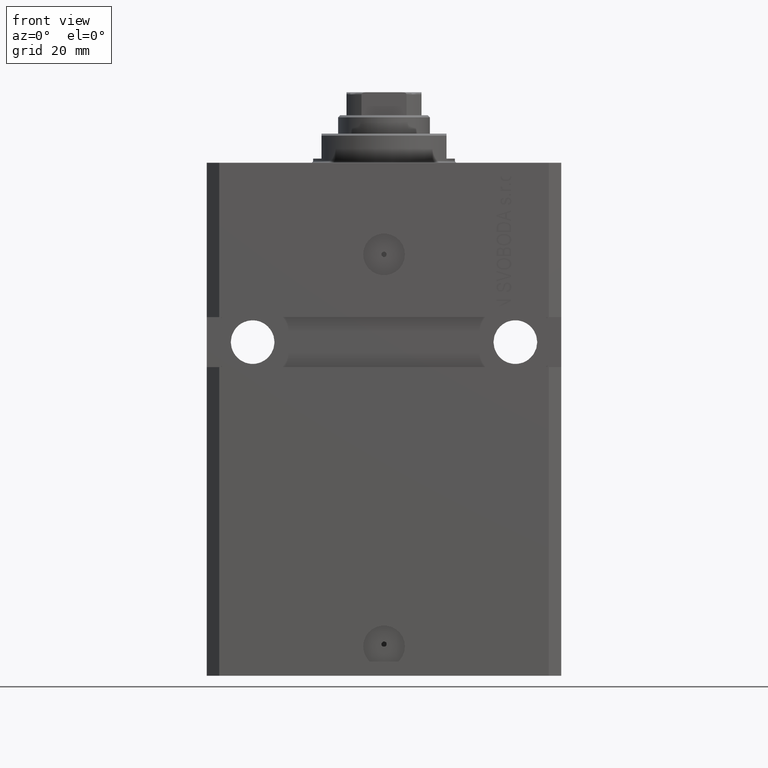
[diagram: clean part render]
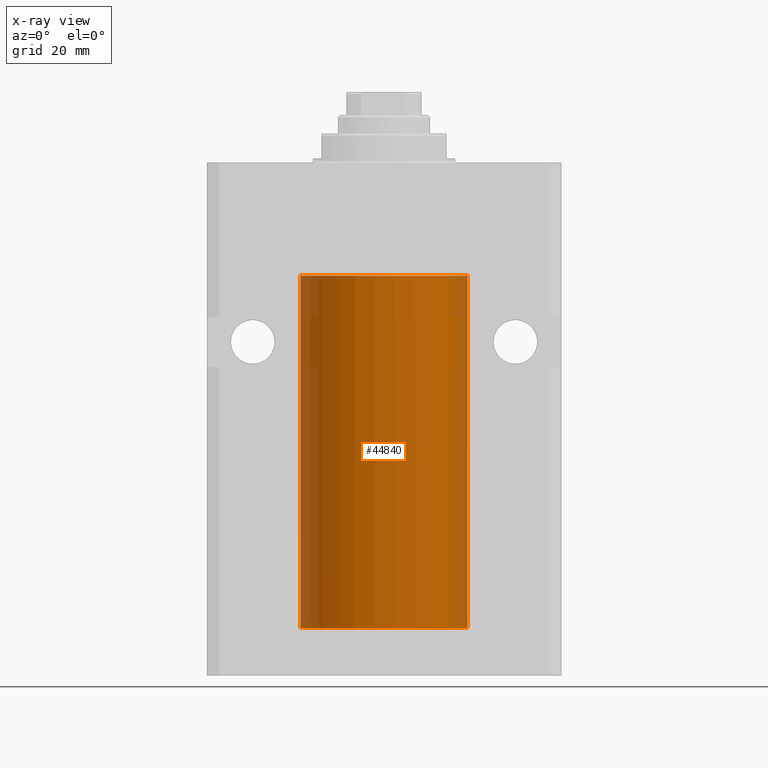
[diagram: x-ray — body ghosted, one internal face saturated and labeled with its STEP entity id]
A machine part, front view, then the same camera in x-ray: the body is ghosted and one INTERNAL B-rep face — a face not visible from any outside direction — is saturated and labeled: STEP entity #44840.
In plain terms, the highlighted cylindrical surface (partial cylindrical patch) has radius 20 mm, axis along (0, 0, 1).
Its self-contained STEP definition (entity closure, byte-faithful):
#920 = CARTESIAN_POINT ( 'NONE',  ( -20.00000000000000000, 2.449293598294706513E-15, -111.6000000000000085 ) ) ;
#1014 = EDGE_CURVE ( 'NONE', #11936, #3204, #30400, .T. ) ;
#1141 = ORIENTED_EDGE ( 'NONE', *, *, #29177, .F. ) ;
#1352 = DIRECTION ( 'NONE',  ( 0.000000000000000000, 0.000000000000000000, 1.000000000000000000 ) ) ;
#1440 = ORIENTED_EDGE ( 'NONE', *, *, #33834, .F. ) ;
#1808 = CARTESIAN_POINT ( 'NONE',  ( 0.000000000000000000, 0.000000000000000000, -111.6000000000000085 ) ) ;
#3204 = VERTEX_POINT ( 'NONE', #12331 ) ;
#4595 = CARTESIAN_POINT ( 'NONE',  ( 19.99766246719553209, -0.3267907458473873761, -109.5571608607969267 ) ) ;
#4860 = CARTESIAN_POINT ( 'NONE',  ( 20.00000000000000000, -4.058908006348821872E-15, -109.6250000000000000 ) ) ;
#5113 = ORIENTED_EDGE ( 'NONE', *, *, #19430, .T. ) ;
#5538 = CARTESIAN_POINT ( 'NONE',  ( 20.00000000000010303, 3.555666352936568165E-13, -108.3749999999966747 ) ) ;
#6139 = CARTESIAN_POINT ( 'NONE',  ( 0.000000000000000000, 0.000000000000000000, -27.10000000000000142 ) ) ;
#6239 = VERTEX_POINT ( 'NONE', #26034 ) ;
#7602 = CARTESIAN_POINT ( 'NONE',  ( -20.00000000000000000, 2.449293598294706513E-15, -27.10000000000000142 ) ) ;
#8498 = VERTEX_POINT ( 'NONE', #5538 ) ;
#9079 = B_SPLINE_CURVE_WITH_KNOTS ( 'NONE', 3,
 ( #14800, #34989, #42021, #4595, #28637, #21603 ),
 .UNSPECIFIED., .F., .F.,
 ( 4, 2, 4 ),
 ( 0.002931526102908805446, 0.003419696219975630440, 0.003907866337042455000 ),
 .UNSPECIFIED. ) ;
#10405 = CARTESIAN_POINT ( 'NONE',  ( 19.99257096259849931, -0.5571491910957669935, -108.6731986224609869 ) ) ;
#10667 = CIRCLE ( 'NONE', #27320, 20.00000000000000000 ) ;
#11505 = EDGE_CURVE ( 'NONE', #8498, #3204, #32363, .T. ) ;
#11610 = EDGE_CURVE ( 'NONE', #36295, #11936, #13271, .T. ) ;
#11936 = VERTEX_POINT ( 'NONE', #7602 ) ;
#11948 = VERTEX_POINT ( 'NONE', #4860 ) ;
#12331 = CARTESIAN_POINT ( 'NONE',  ( 20.00000000000000000, 0.000000000000000000, -27.10000000000000142 ) ) ;
#13023 = DIRECTION ( 'NONE',  ( -0.000000000000000000, -0.000000000000000000, 1.000000000000000000 ) ) ;
#13271 = LINE ( 'NONE', #26667, #18290 ) ;
#14800 = CARTESIAN_POINT ( 'NONE',  ( 19.99023198964933812, -0.6250000000000827116, -109.0000000000000000 ) ) ;
#15265 = CYLINDRICAL_SURFACE ( 'NONE', #30409, 20.00000000000000000 ) ;
#15799 = CARTESIAN_POINT ( 'NONE',  ( 20.00000000000000000, 0.000000000000000000, -111.6000000000000085 ) ) ;
#15988 = LINE ( 'NONE', #23456, #26457 ) ;
#16778 = DIRECTION ( 'NONE',  ( 0.000000000000000000, 0.000000000000000000, 1.000000000000000000 ) ) ;
#18290 = VECTOR ( 'NONE', #27112, 1000.000000000000000 ) ;
#19430 = EDGE_CURVE ( 'NONE', #23314, #11948, #9079, .T. ) ;
#20610 = CARTESIAN_POINT ( 'NONE',  ( 20.00000000000000000, -0.1632180151482451602, -108.3749999999998295 ) ) ;
#21603 = CARTESIAN_POINT ( 'NONE',  ( 20.00000000000000000, -4.058908006348821872E-15, -109.6250000000000000 ) ) ;
#21837 = FACE_OUTER_BOUND ( 'NONE', #32117, .T. ) ;
#22071 = CARTESIAN_POINT ( 'NONE',  ( 19.99023198964933812, -0.6250000000000827116, -109.0000000000000000 ) ) ;
#23314 = VERTEX_POINT ( 'NONE', #22071 ) ;
#23456 = CARTESIAN_POINT ( 'NONE',  ( 20.00000000000000000, 0.000000000000000000, -111.6000000000000085 ) ) ;
#24455 = CARTESIAN_POINT ( 'NONE',  ( 19.99023198964933812, -0.6250000000000828226, -108.8350317194948502 ) ) ;
#24681 = CARTESIAN_POINT ( 'NONE',  ( 19.99023198964933812, -0.6250000000000827116, -109.0000000000000000 ) ) ;
#24789 = DIRECTION ( 'NONE',  ( -0.000000000000000000, -0.000000000000000000, 1.000000000000000000 ) ) ;
#25037 = ORIENTED_EDGE ( 'NONE', *, *, #11610, .T. ) ;
#26034 = CARTESIAN_POINT ( 'NONE',  ( 20.00000000000000000, 0.000000000000000000, -111.6000000000000085 ) ) ;
#26255 = VECTOR ( 'NONE', #32134, 1000.000000000000000 ) ;
#26457 = VECTOR ( 'NONE', #13023, 1000.000000000000000 ) ;
#26667 = CARTESIAN_POINT ( 'NONE',  ( -20.00000000000000000, 2.449293598294706513E-15, -111.6000000000000085 ) ) ;
#27112 = DIRECTION ( 'NONE',  ( -0.000000000000000000, -0.000000000000000000, 1.000000000000000000 ) ) ;
#27320 = AXIS2_PLACEMENT_3D ( 'NONE', #1808, #1352, #43306 ) ;
#28637 = CARTESIAN_POINT ( 'NONE',  ( 20.00000000000000000, -0.1650670266421430665, -109.6250000000000284 ) ) ;
#29177 = EDGE_CURVE ( 'NONE', #6239, #11948, #15988, .T. ) ;
#30269 = ORIENTED_EDGE ( 'NONE', *, *, #11505, .F. ) ;
#30400 = CIRCLE ( 'NONE', #31106, 20.00000000000000000 ) ;
#30409 = AXIS2_PLACEMENT_3D ( 'NONE', #35674, #24789, #32277 ) ;
#31038 = CARTESIAN_POINT ( 'NONE',  ( 20.00000000000010303, 3.555666352936568165E-13, -108.3749999999966747 ) ) ;
#31106 = AXIS2_PLACEMENT_3D ( 'NONE', #6139, #16778, #34468 ) ;
#32117 = EDGE_LOOP ( 'NONE', ( #1440, #25037, #41440, #30269, #36617, #5113, #1141 ) ) ;
#32134 = DIRECTION ( 'NONE',  ( -0.000000000000000000, -0.000000000000000000, 1.000000000000000000 ) ) ;
#32277 = DIRECTION ( 'NONE',  ( 1.000000000000000000, 0.000000000000000000, 0.000000000000000000 ) ) ;
#32363 = LINE ( 'NONE', #15799, #26255 ) ;
#33834 = EDGE_CURVE ( 'NONE', #36295, #6239, #10667, .T. ) ;
#34468 = DIRECTION ( 'NONE',  ( 1.000000000000000000, 0.000000000000000000, 0.000000000000000000 ) ) ;
#34989 = CARTESIAN_POINT ( 'NONE',  ( 19.99023198964934167, -0.6250000000000828226, -109.1647941998272842 ) ) ;
#35674 = CARTESIAN_POINT ( 'NONE',  ( 0.000000000000000000, 0.000000000000000000, -111.6000000000000085 ) ) ;
#36295 = VERTEX_POINT ( 'NONE', #920 ) ;
#36617 = ORIENTED_EDGE ( 'NONE', *, *, #40838, .T. ) ;
#40838 = EDGE_CURVE ( 'NONE', #8498, #23314, #44536, .T. ) ;
#41440 = ORIENTED_EDGE ( 'NONE', *, *, #1014, .T. ) ;
#41706 = CARTESIAN_POINT ( 'NONE',  ( 19.99766790699043995, -0.3264769477312362556, -108.4426606383000546 ) ) ;
#42021 = CARTESIAN_POINT ( 'NONE',  ( 19.99256494106949944, -0.5573539455062719306, -109.3264613235961065 ) ) ;
#43306 = DIRECTION ( 'NONE',  ( 1.000000000000000000, 0.000000000000000000, 0.000000000000000000 ) ) ;
#44536 = B_SPLINE_CURVE_WITH_KNOTS ( 'NONE', 3,
 ( #31038, #20610, #41706, #10405, #24455, #24681 ),
 .UNSPECIFIED., .F., .F.,
 ( 4, 2, 4 ),
 ( 0.001954154509844075859, 0.002442840306376440652, 0.002931526102908805446 ),
 .UNSPECIFIED. ) ;
#44840 = ADVANCED_FACE ( 'NONE', ( #21837 ), #15265, .F. ) ;